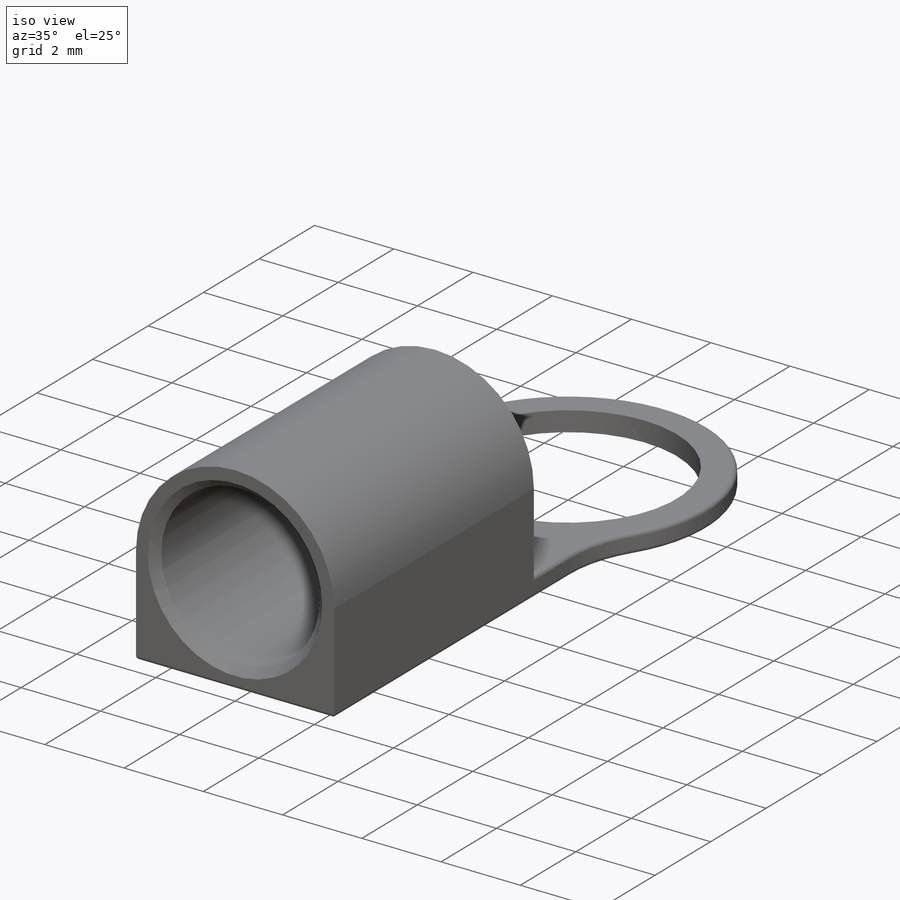
[diagram: iso view]
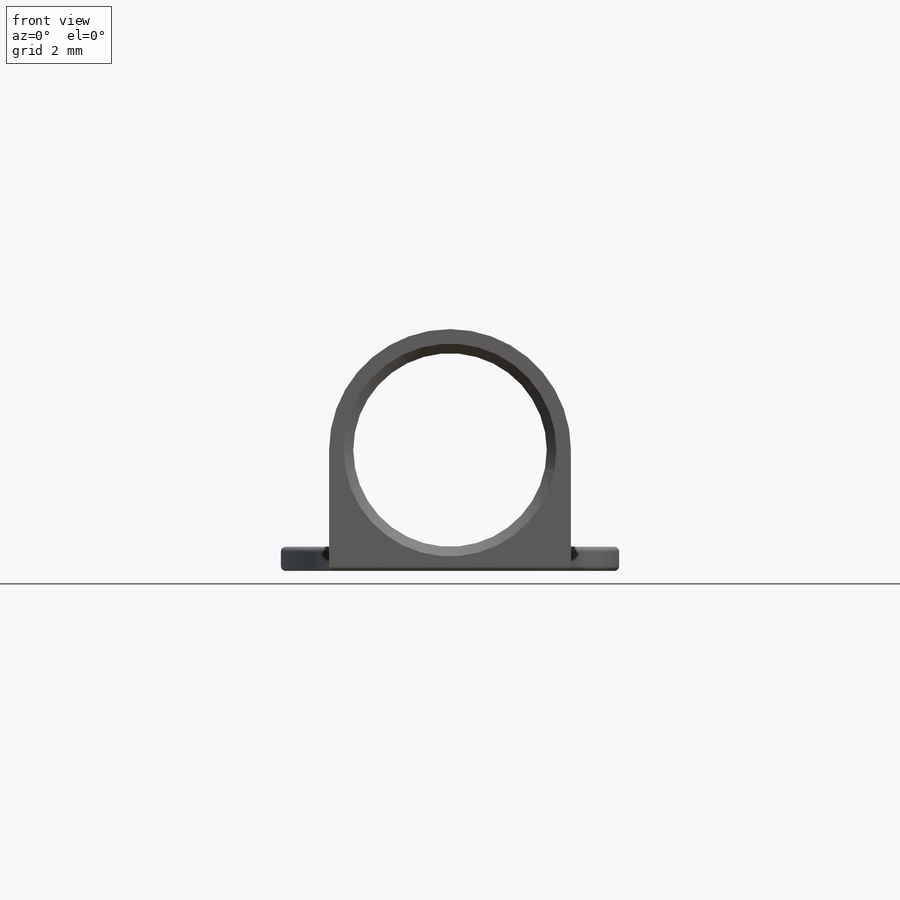
[diagram: front view]
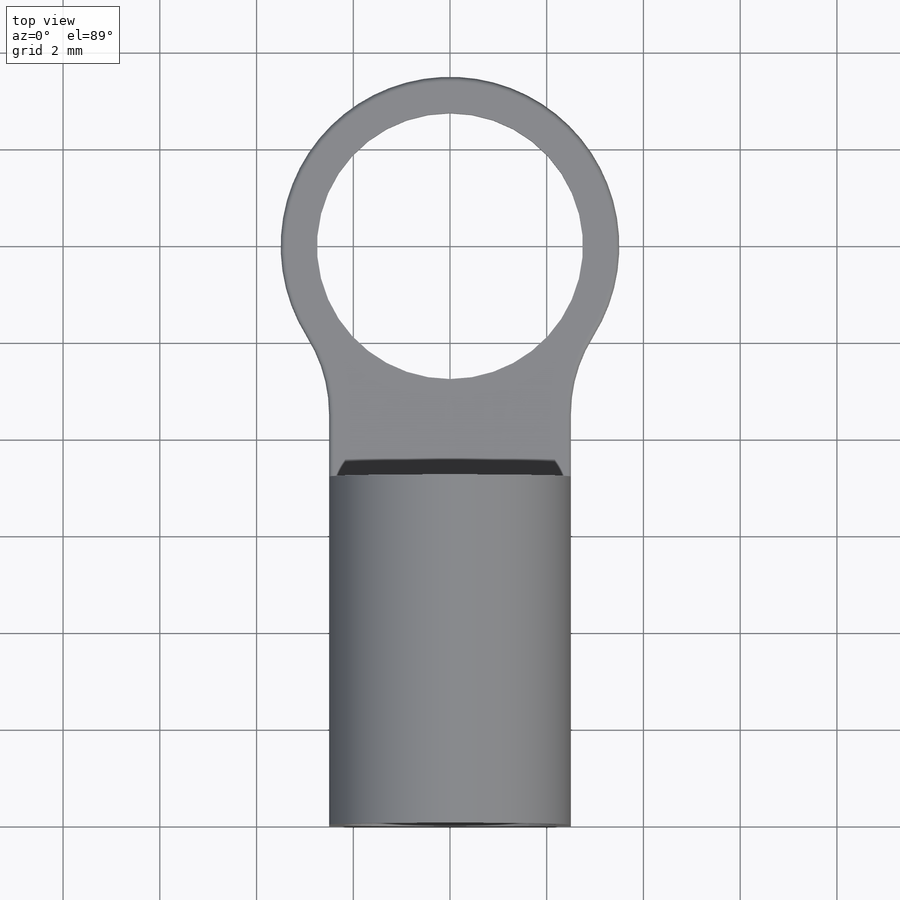
[diagram: top view]
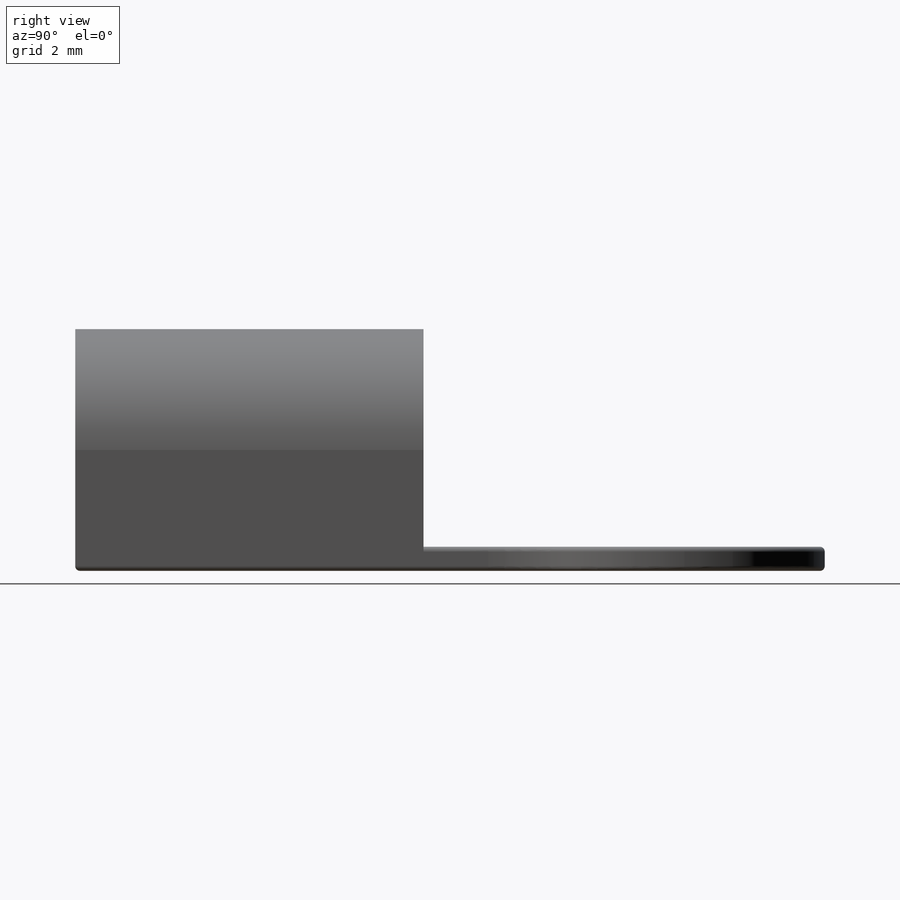
[diagram: right view]
SOLIDWORKS PART (.sldprt)
format: sldprt  version: not decoded by parser v0  size: 276,992 bytes
history: native  units: mm
features: plane x4, sketch x3, extrude x2, fillet x2, material x1, cut_extrude x1, chamfer x1 (+10 scaffold rows collapsed)
feature tree (24):
  scaffold x10  (default folders/planes/origin — collapsed)
  material  "Material <nicht festgelegt>"
  plane  "Ebene vorne"
  plane  "Ebene oben"
  plane  "Ebene rechts"
  sketch  "Skizze1"  dims[c1.D1=~44.36429mm c2.D1=7.0mm c2.D2=5.5mm c2.D5=3.0mm c2.D3=~9.254604mm c3.D3=5.0mm c3.D4=12.0mm]
  extrude  "Aufsatz-Linear austragen1"  Depth=0.5mm
  plane  "Ebene1"
  sketch  "Skizze2"  dims[D1=5.0mm D2=5.0mm]
  extrude  "Aufsatz-Linear austragen2"  Depth=7.2mm
  fillet  "Verrundung1"  [1 undecoded]
  sketch  "Skizze3"  dims[D1=4.0mm]
  cut_extrude  "Schnitt-Linear austragen1"  [1 undecoded]
  fillet  "Verrundung2"  Radius=0.1mm
  chamfer  "Fase1"  Distance=0.2mm Angle=45deg
decode coverage: 7 of 9 modeling features carry decoded parameters
note: ~ marks probable driven/reference dimensions
note: 2 parameter values undecoded
note: suppression state not decoded; provenance and decode notes live in map.json
